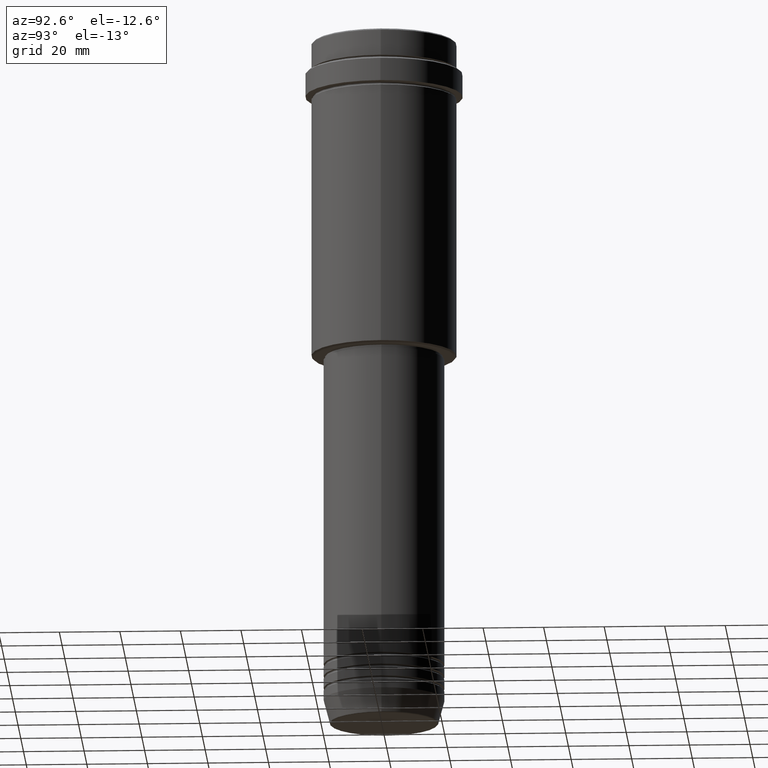
[diagram: clean part render]
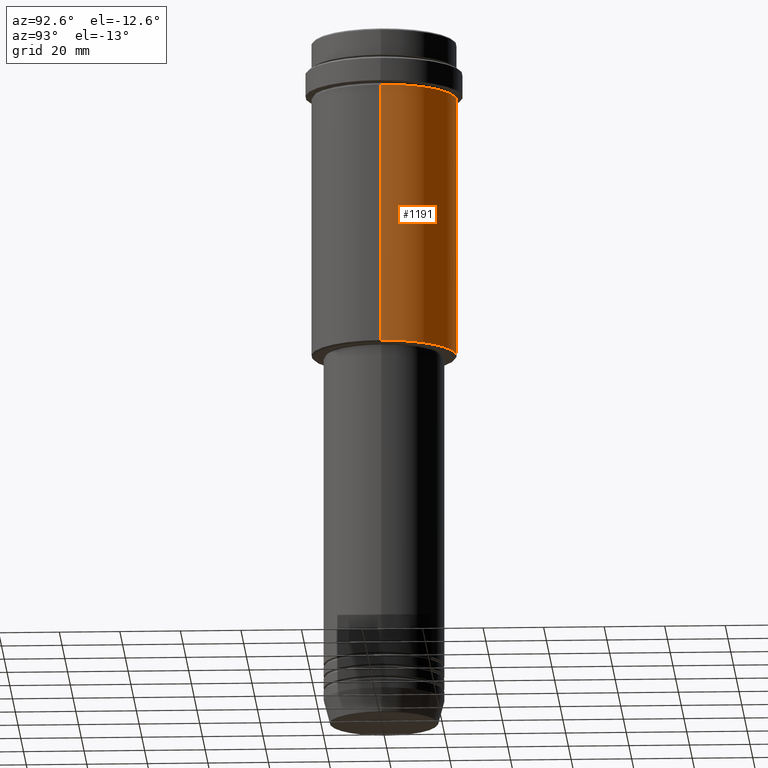
[diagram: same view with one face highlighted and labeled with its STEP entity id]
A machine part, auxiliary view. The second image highlights one B-rep face of the part: STEP entity #1191.
In plain terms, the highlighted cylindrical surface (partial cylindrical patch) has radius 24 mm, axis along (-0, -0, 1).
Its self-contained STEP definition (entity closure, byte-faithful):
#6 = CARTESIAN_POINT ( 'NONE',  ( 0.000000000000000000, 0.000000000000000000, -105.5000000000000284 ) ) ;
#118 = DIRECTION ( 'NONE',  ( -0.000000000000000000, -0.000000000000000000, 1.000000000000000000 ) ) ;
#166 = ORIENTED_EDGE ( 'NONE', *, *, #1377, .T. ) ;
#179 = VERTEX_POINT ( 'NONE', #409 ) ;
#195 = FACE_OUTER_BOUND ( 'NONE', #1183, .T. ) ;
#214 = VERTEX_POINT ( 'NONE', #1067 ) ;
#295 = ORIENTED_EDGE ( 'NONE', *, *, #583, .T. ) ;
#300 = AXIS2_PLACEMENT_3D ( 'NONE', #305, #857, #1104 ) ;
#305 = CARTESIAN_POINT ( 'NONE',  ( 0.000000000000000000, 0.000000000000000000, -19.00000000000000711 ) ) ;
#321 = CARTESIAN_POINT ( 'NONE',  ( 23.99999999999998579, 0.000000000000000000, -105.5000000000000284 ) ) ;
#331 = LINE ( 'NONE', #1216, #1351 ) ;
#383 = EDGE_CURVE ( 'NONE', #1328, #179, #801, .T. ) ;
#388 = DIRECTION ( 'NONE',  ( -0.000000000000000000, -0.000000000000000000, 1.000000000000000000 ) ) ;
#409 = CARTESIAN_POINT ( 'NONE',  ( 23.99999999999997158, 0.000000000000000000, -19.00000000000000711 ) ) ;
#512 = CYLINDRICAL_SURFACE ( 'NONE', #811, 23.99999999999998579 ) ;
#583 = EDGE_CURVE ( 'NONE', #1328, #1264, #1002, .T. ) ;
#737 = CIRCLE ( 'NONE', #300, 23.99999999999997158 ) ;
#801 = LINE ( 'NONE', #921, #1390 ) ;
#811 = AXIS2_PLACEMENT_3D ( 'NONE', #957, #388, #1293 ) ;
#857 = DIRECTION ( 'NONE',  ( -0.000000000000000000, -0.000000000000000000, 1.000000000000000000 ) ) ;
#861 = DIRECTION ( 'NONE',  ( -1.000000000000000000, 0.000000000000000000, 0.000000000000000000 ) ) ;
#921 = CARTESIAN_POINT ( 'NONE',  ( 23.99999999999998579, 0.000000000000000000, 0.000000000000000000 ) ) ;
#954 = ORIENTED_EDGE ( 'NONE', *, *, #1238, .F. ) ;
#957 = CARTESIAN_POINT ( 'NONE',  ( 0.000000000000000000, 0.000000000000000000, 0.000000000000000000 ) ) ;
#1002 = CIRCLE ( 'NONE', #1391, 23.99999999999998579 ) ;
#1023 = ORIENTED_EDGE ( 'NONE', *, *, #383, .F. ) ;
#1067 = CARTESIAN_POINT ( 'NONE',  ( -23.99999999999997158, 2.939152317953645133E-15, -19.00000000000000711 ) ) ;
#1104 = DIRECTION ( 'NONE',  ( 1.000000000000000000, 0.000000000000000000, 0.000000000000000000 ) ) ;
#1183 = EDGE_LOOP ( 'NONE', ( #295, #166, #954, #1023 ) ) ;
#1191 = ADVANCED_FACE ( 'NONE', ( #195 ), #512, .T. ) ;
#1194 = CARTESIAN_POINT ( 'NONE',  ( -23.99999999999998579, 2.939152317953646317E-15, -105.5000000000000284 ) ) ;
#1216 = CARTESIAN_POINT ( 'NONE',  ( -23.99999999999998579, 2.939152317953646317E-15, 0.000000000000000000 ) ) ;
#1221 = DIRECTION ( 'NONE',  ( -0.000000000000000000, -0.000000000000000000, 1.000000000000000000 ) ) ;
#1238 = EDGE_CURVE ( 'NONE', #179, #214, #737, .T. ) ;
#1264 = VERTEX_POINT ( 'NONE', #1194 ) ;
#1293 = DIRECTION ( 'NONE',  ( 1.000000000000000000, 0.000000000000000000, 0.000000000000000000 ) ) ;
#1328 = VERTEX_POINT ( 'NONE', #321 ) ;
#1351 = VECTOR ( 'NONE', #1221, 1000.000000000000000 ) ;
#1358 = DIRECTION ( 'NONE',  ( -0.000000000000000000, -0.000000000000000000, 1.000000000000000000 ) ) ;
#1377 = EDGE_CURVE ( 'NONE', #1264, #214, #331, .T. ) ;
#1390 = VECTOR ( 'NONE', #1358, 1000.000000000000000 ) ;
#1391 = AXIS2_PLACEMENT_3D ( 'NONE', #6, #118, #861 ) ;